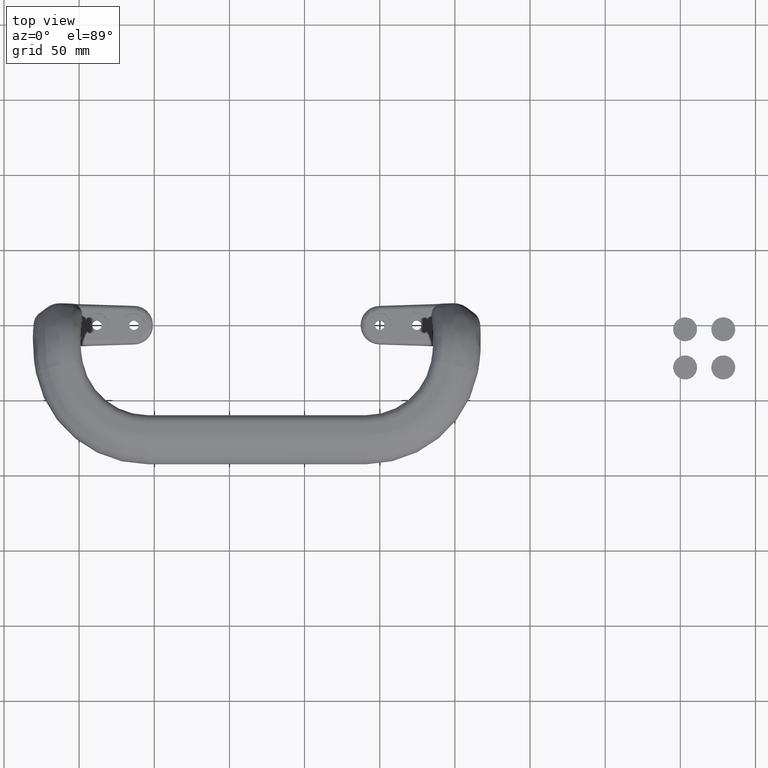
[diagram: clean part render]
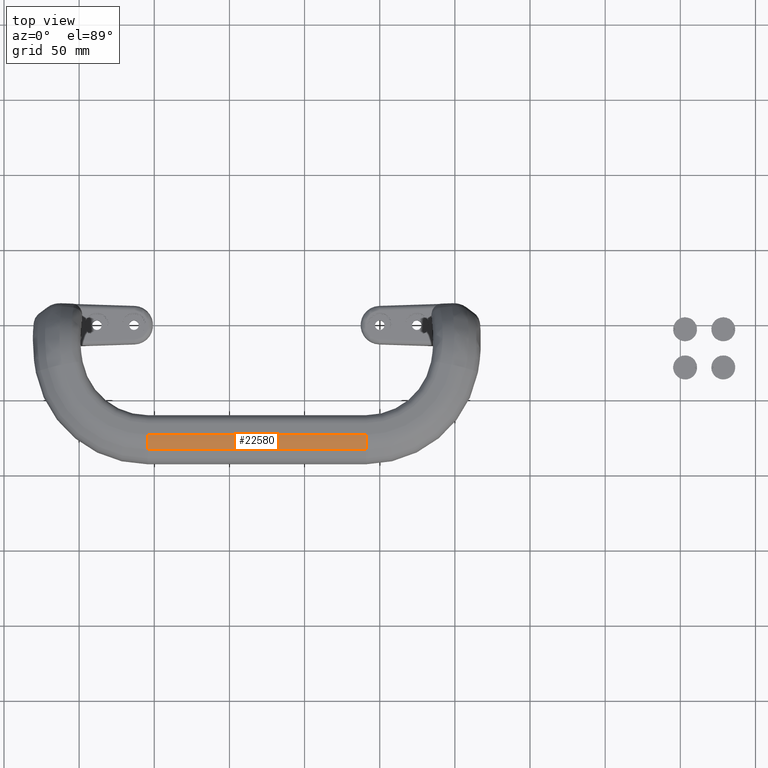
[diagram: same view with one face highlighted and labeled with its STEP entity id]
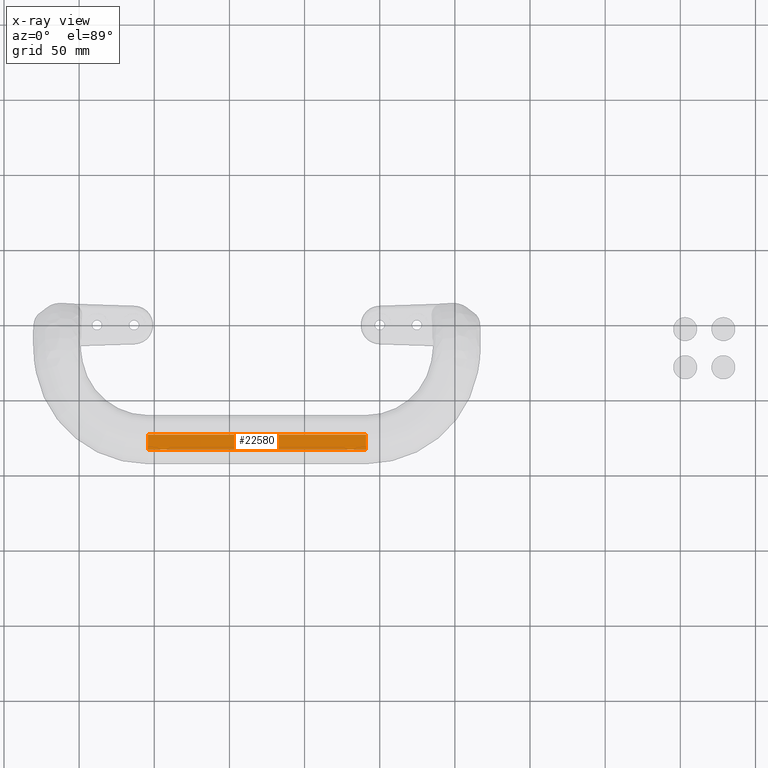
[diagram: x-ray of the same camera — body ghosted, the highlighted face saturated]
A machine part, top view. The second image highlights one B-rep face of the part: STEP entity #22580.
The next image is the same camera in x-ray: the body ghosted, the highlighted face saturated — about 0% of this face is hidden behind the body in this view.
In plain terms, the highlighted cylindrical surface (edge-blend (fillet) strip) has radius 14.2876 mm, axis along (1, 0, 0).
Its self-contained STEP definition (entity closure, byte-faithful):
#2360=FACE_OUTER_BOUND('',#3762,.T.);
#3762=EDGE_LOOP('',(#15699,#15700,#15701,#15702));
#5471=LINE('',#36266,#6744);
#5472=LINE('',#36270,#6745);
#6744=VECTOR('',#27239,0.00155000310000955);
#6745=VECTOR('',#27244,0.00155000310000955);
#7406=CIRCLE('',#23915,0.562504296847);
#7415=CIRCLE('',#23934,0.562504297405);
#9125=VERTEX_POINT('',#36224);
#9126=VERTEX_POINT('',#36228);
#9135=VERTEX_POINT('',#36264);
#9136=VERTEX_POINT('',#36268);
#11448=EDGE_CURVE('',#9125,#9126,#7406,.T.);
#11467=EDGE_CURVE('',#9125,#9135,#5471,.T.);
#11468=EDGE_CURVE('',#9135,#9136,#7415,.T.);
#11469=EDGE_CURVE('',#9126,#9136,#5472,.F.);
#15699=ORIENTED_EDGE('',*,*,#11448,.F.);
#15700=ORIENTED_EDGE('',*,*,#11467,.T.);
#15701=ORIENTED_EDGE('',*,*,#11468,.T.);
#15702=ORIENTED_EDGE('',*,*,#11469,.F.);
#20562=CYLINDRICAL_SURFACE('',#23933,0.562504297405);
#22580=ADVANCED_FACE('',(#2360),#20562,.T.);
#23915=AXIS2_PLACEMENT_3D('',#36229,#27193,#27194);
#23933=AXIS2_PLACEMENT_3D('',#36267,#27240,#27241);
#23934=AXIS2_PLACEMENT_3D('',#36269,#27242,#27243);
#27193=DIRECTION('center_axis',(0.999999999999777,-6.63691428802761E-7,
8.05276861750376E-8));
#27194=DIRECTION('ref_axis',(-6.63691428802763E-7,-0.99999999999978,0.));
#27239=DIRECTION('',(-1.,0.,0.));
#27240=DIRECTION('center_axis',(1.,0.,0.));
#27241=DIRECTION('ref_axis',(0.,0.152363121561347,0.988324581900138));
#27242=DIRECTION('center_axis',(1.,0.,0.));
#27243=DIRECTION('ref_axis',(0.,-1.,0.));
#27244=DIRECTION('',(1.,0.,0.));
#36224=CARTESIAN_POINT('',(-0.360000009880992,-2.91426860635885,3.05593422163028));
#36228=CARTESIAN_POINT('',(-0.360001069997992,-3.30593062068025,2.97202977768673));
#36229=CARTESIAN_POINT('Origin',(-0.360001537669,-2.9999746849,2.50000701274));
#36264=CARTESIAN_POINT('',(-6.0775,-2.91426861554882,3.05593416153594));
#36266=CARTESIAN_POINT('',(-3.21875,-2.91426861564,3.05593416155));
#36267=CARTESIAN_POINT('Origin',(-6.0775,-2.99997468426,2.50000701208));
#36268=CARTESIAN_POINT('',(-6.0775,-3.30592895657726,2.97202721064338));
#36269=CARTESIAN_POINT('Origin',(-6.0775,-2.99997468426,2.50000701208));
#36270=CARTESIAN_POINT('',(-3.21875,-3.30592895657,2.97202721065));